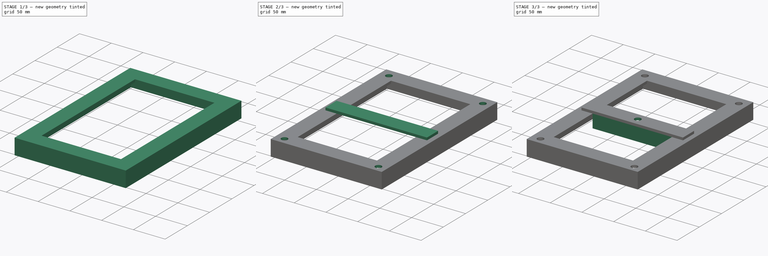
[diagram: build sequence overview — one tinted view per stage of 3, left to right]
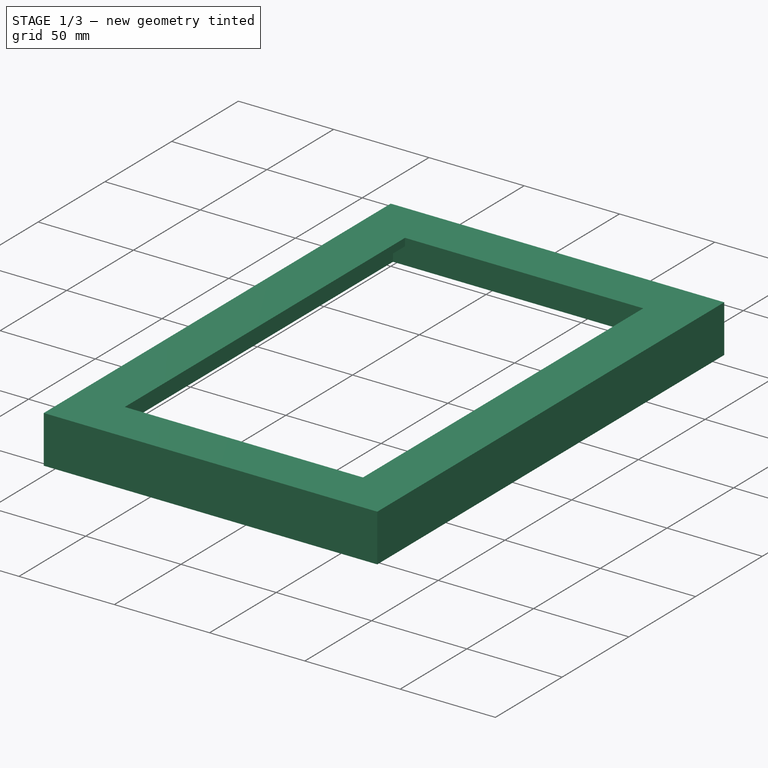
[diagram: stage 1 of 3 — iso view after this stage's code; geometry added in this stage tinted green]
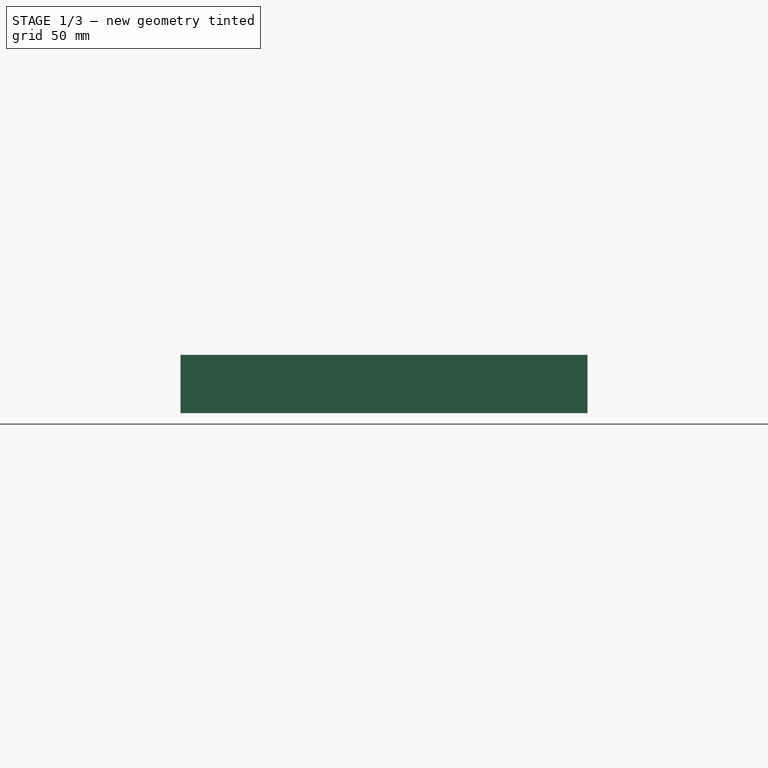
[diagram: stage 1 of 3 — front view after this stage's code; geometry added in this stage tinted green]
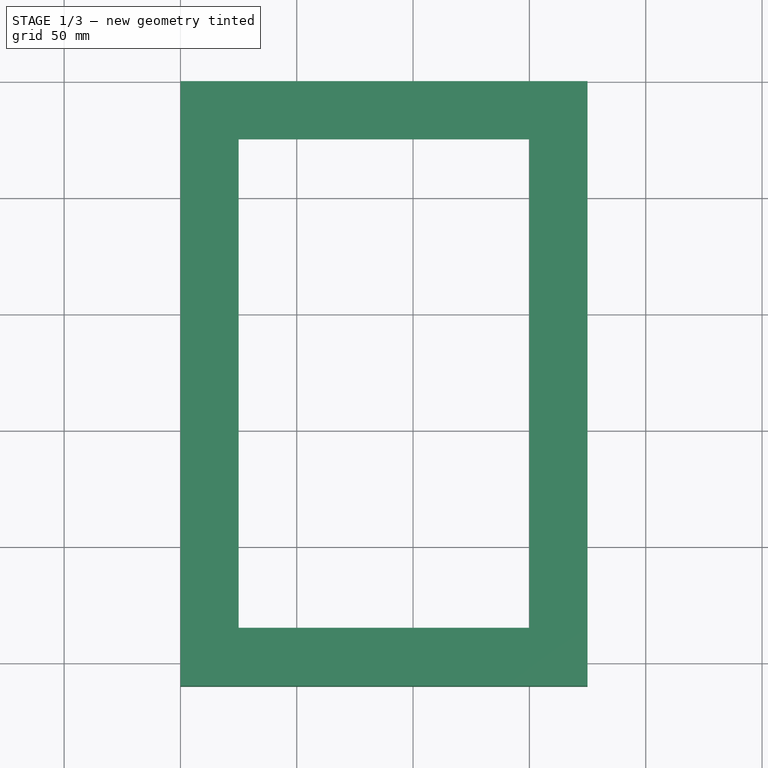
[diagram: stage 1 of 3 — top view after this stage's code; geometry added in this stage tinted green]
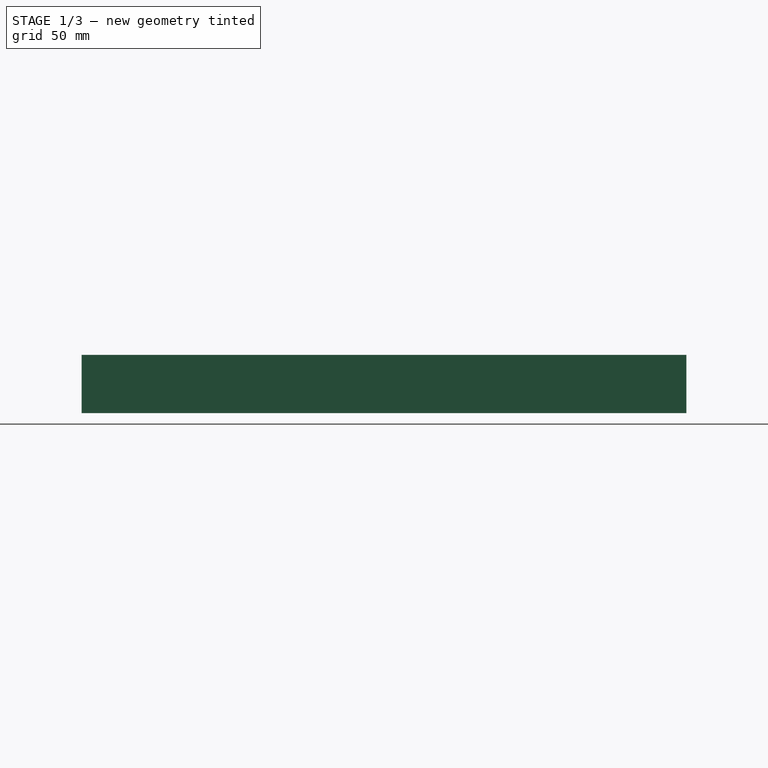
[diagram: stage 1 of 3 — right view after this stage's code; geometry added in this stage tinted green]
FCSTD DOCUMENT  (FreeCAD 0.14R3703 (Git))
Label: solar-panel-stand
License: CC-BY 3.0
LicenseURL: http://creativecommons.org/licenses/by/3.0/
objects: Sketcher::SketchObject×6, PartDesign::Pad×3, PartDesign::Pocket×3, Part::Feature×1
note: 19 computed .brp shape members not serialized (recipe doc carries the construction recipe); baked Part::Feature solids carry a one-line shape summary decoded from their .brp

FEATURE [Sketcher::SketchObject] Sketch002  label="Base Frame Sketch"
  sketch-geometry (12):
    g0: LineSegment StartX=0 StartY=0 StartZ=0 EndX=175 EndY=0 EndZ=0
    g1: LineSegment StartX=175 StartY=0 StartZ=0 EndX=175 EndY=-260 EndZ=0
    g2: LineSegment StartX=175 StartY=-260 StartZ=0 EndX=0 EndY=-260 EndZ=0
    g3: LineSegment StartX=0 StartY=-260 StartZ=0 EndX=0 EndY=0 EndZ=0
    g4: LineSegment StartX=25 StartY=-25 StartZ=0 EndX=150 EndY=-25 EndZ=0
    g5: LineSegment StartX=150 StartY=-25 StartZ=0 EndX=150 EndY=-235 EndZ=0
    g6: LineSegment StartX=150 StartY=-235 StartZ=0 EndX=25 EndY=-235 EndZ=0
    g7: LineSegment StartX=25 StartY=-235 StartZ=0 EndX=25 EndY=-25 EndZ=0
    g8: LineSegment [constr] StartX=175 StartY=0 StartZ=0 EndX=150 EndY=-25 EndZ=0
    g9: LineSegment [constr] StartX=0 StartY=0 StartZ=0 EndX=25 EndY=-25 EndZ=0
    g10: LineSegment [constr] StartX=0 StartY=-260 StartZ=0 EndX=25 EndY=-235 EndZ=0
    g11: LineSegment [constr] StartX=175 StartY=-260 StartZ=0 EndX=150 EndY=-235 EndZ=0
  constraints (32):
    c: Coincident(g0,g1)
    c: Coincident(g1,g2)
    c: Coincident(g2,g3)
    c: Coincident(g3,g0)
    c: Horizontal(g0)
    c: Horizontal(g2)
    c: Vertical(g1)
    c: Vertical(g3)
    c: Coincident(g0,g-1)
    c: Distance(g0) = 175
    c: Distance(g1) = 260
    c: Coincident(g4,g5)
    c: Coincident(g5,g6)
    c: Coincident(g6,g7)
    c: Coincident(g7,g4)
    c: Horizontal(g4)
    c: Horizontal(g6)
    c: Vertical(g5)
    c: Vertical(g7)
    c: Coincident(g8,g0)
    c: Coincident(g8,g4)
    c: Coincident(g9,g-1)
    c: Coincident(g9,g4)
    c: Coincident(g10,g2)
    c: Coincident(g10,g6)
    c: Coincident(g11,g1)
    c: Coincident(g11,g5)
    c: Equal(g9,g8)
    c: Equal(g8,g11)
    c: Equal(g11,g10)
    c: Distance(g4) = 125
    c: Distance(g5) = 210
FEATURE [PartDesign::Pad] Pad002  label="Base Frame"
  Length = 25
  Length2 = 100
  Sketch = -> Sketch002
  Type = 0
FEATURE [Sketcher::SketchObject] Sketch  label="L Shape Sketch"
  Placement = pos=(0,0,0) rot=(1,0,0;3.14159rad)
  Support = -> Pad002 [Face9]
  sketch-geometry (4):
    g0: LineSegment StartX=4 StartY=4 StartZ=0 EndX=171 EndY=4 EndZ=0
    g1: LineSegment StartX=171 StartY=4 StartZ=0 EndX=171 EndY=256 EndZ=0
    g2: LineSegment StartX=171 StartY=256 StartZ=0 EndX=4 EndY=256 EndZ=0
    g3: LineSegment StartX=4 StartY=256 StartZ=0 EndX=4 EndY=4 EndZ=0
  constraints (12):
    c: Coincident(g0,g1)
    c: Coincident(g1,g2)
    c: Coincident(g2,g3)
    c: Coincident(g3,g0)
    c: Horizontal(g0)
    c: Horizontal(g2)
    c: Vertical(g1)
    c: Vertical(g3)
    c: DistanceX(g0) = 4
    c: DistanceY(g0) = 4
    c: Distance(g0) = 167
    c: Distance(g1) = 252
FEATURE [PartDesign::Pocket] Pocket  label="L Shape Frame"
  Length = 21
  Sketch = -> Sketch
  Type = 0
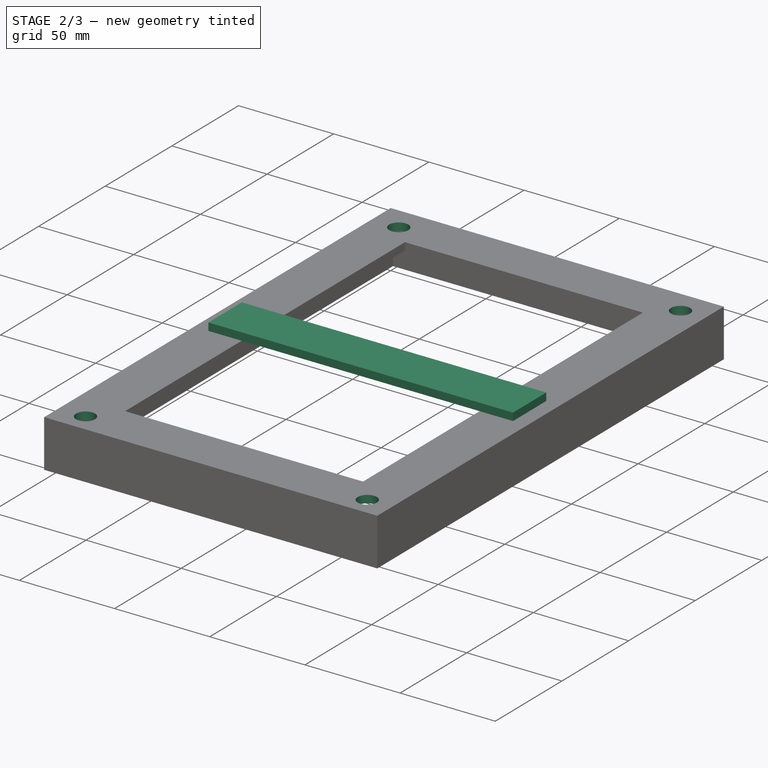
[diagram: stage 2 of 3 — iso view after this stage's code; geometry added in this stage tinted green]
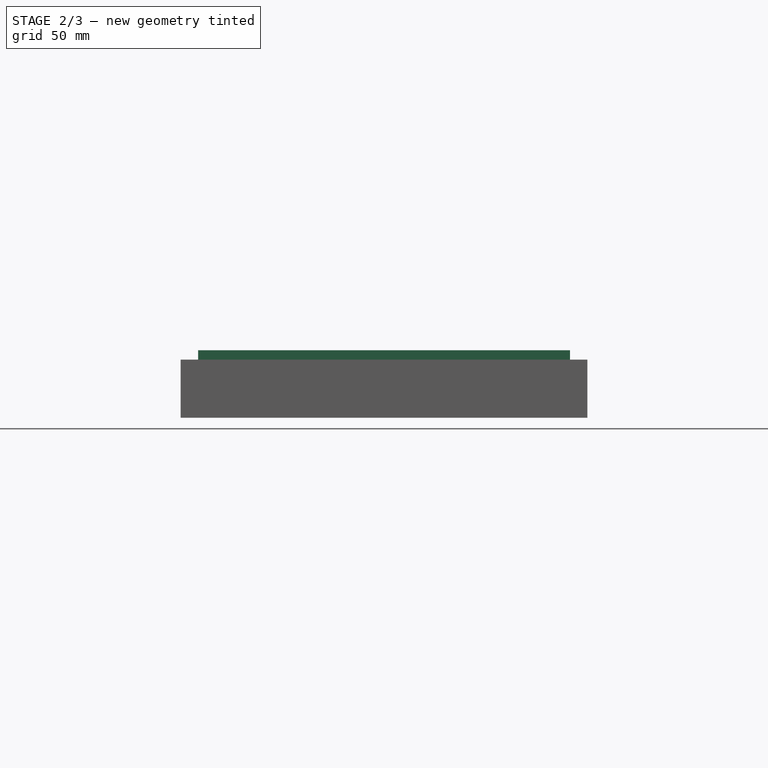
[diagram: stage 2 of 3 — front view after this stage's code; geometry added in this stage tinted green]
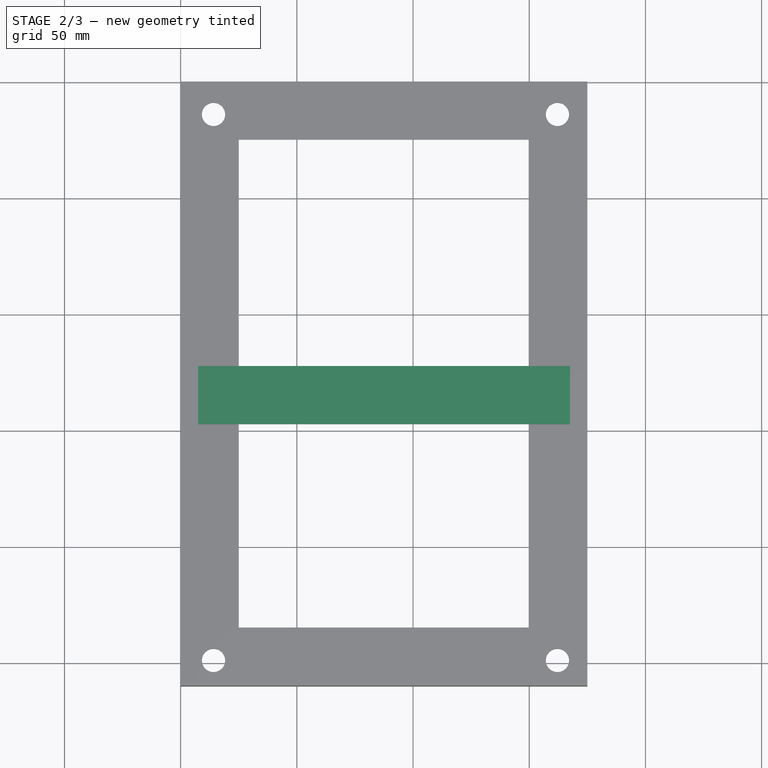
[diagram: stage 2 of 3 — top view after this stage's code; geometry added in this stage tinted green]
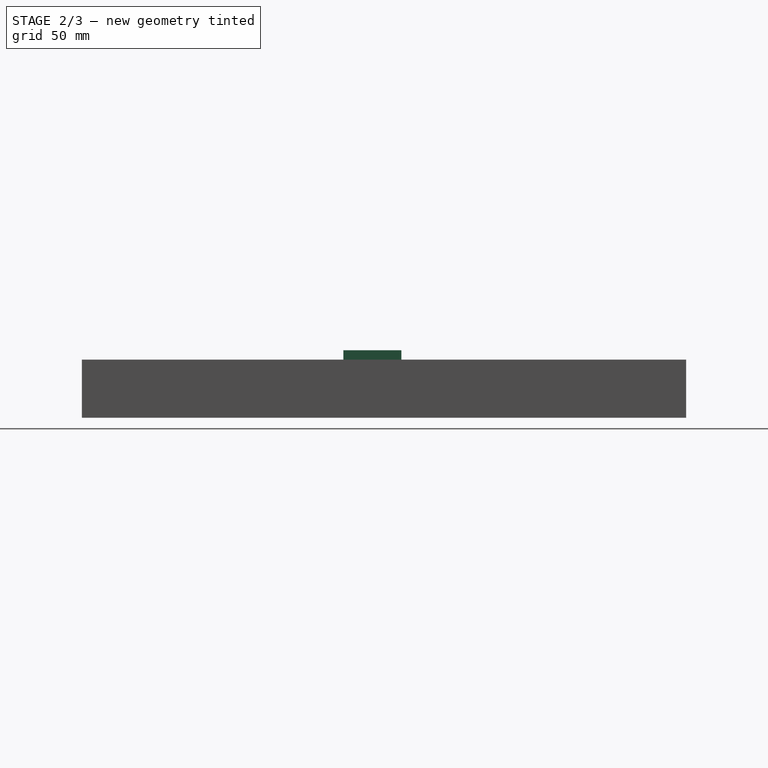
[diagram: stage 2 of 3 — right view after this stage's code; geometry added in this stage tinted green]
FEATURE [Sketcher::SketchObject] Sketch003  label="Holes Sketch"
  Placement = pos=(0,0,25) rot=(0,0,1;0rad)
  Support = -> Pocket [Face5]
  sketch-geometry (9):
    g0: Circle CenterX=14.1421 CenterY=-14.1421 CenterZ=0 NormalX=0 NormalY=0 NormalZ=1 Radius=5
    g1: Circle CenterX=162.142 CenterY=-14.1421 CenterZ=0 NormalX=0 NormalY=0 NormalZ=1 Radius=5
    g2: Circle CenterX=14.1421 CenterY=-249.142 CenterZ=0 NormalX=0 NormalY=0 NormalZ=1 Radius=5
    g3: Circle CenterX=162.142 CenterY=-249.142 CenterZ=0 NormalX=0 NormalY=0 NormalZ=1 Radius=5
    g4: LineSegment [constr] StartX=0 StartY=0 StartZ=0 EndX=14.1421 EndY=-14.1421 EndZ=0
    g5: LineSegment [constr] StartX=14.1421 StartY=-14.1421 StartZ=0 EndX=162.142 EndY=-14.1421 EndZ=0
    g6: LineSegment [constr] StartX=162.142 StartY=-14.1421 StartZ=0 EndX=162.142 EndY=-249.142 EndZ=0
    g7: LineSegment [constr] StartX=162.142 StartY=-249.142 StartZ=0 EndX=14.1421 EndY=-249.142 EndZ=0
    g8: LineSegment [constr] StartX=14.1421 StartY=-249.142 StartZ=0 EndX=14.1421 EndY=-14.1421 EndZ=0
  constraints (25):
    c: Equal(g0,g1)
    c: Equal(g1,g3)
    c: Equal(g3,g2)
    c: Radius(g0) = 5
    c: Coincident(g4,g-1)
    c: Coincident(g4,g0)
    c: Angle(g4,g-1) = 0.785398
    c: Distance(g4) = 20
    c: Coincident(g5,g6)
    c: Coincident(g6,g7)
    c: Coincident(g7,g8)
    c: Coincident(g8,g5)
    c: Horizontal(g5)
    c: Horizontal(g7)
    c: Vertical(g6)
    c: Vertical(g8)
    c: Coincident(g5,g0)
    c: DistanceX(g2,g7) = 0
    c: DistanceY(g2,g7) = 0
    c: DistanceX(g3,g6) = 0
    c: DistanceY(g3,g6) = 0
    c: DistanceX(g1,g5) = 0
    c: DistanceY(g1,g5) = 0
    c: Distance(g7) = 148
    c: Distance(g6) = 235
FEATURE [PartDesign::Pocket] Pocket001  label="Holes"
  Length = 4
  Sketch = -> Sketch003
  Type = 0
FEATURE [Sketcher::SketchObject] Sketch004  label="Rod Holder Sketch"
  ExternalGeometry = -> [Pocket001]
  Placement = pos=(0,0,25) rot=(0,0,1;0rad)
  Support = -> Pocket001 [Face5]
  sketch-geometry (4):
    g0: LineSegment StartX=7.515 StartY=-122.5 StartZ=0 EndX=167.515 EndY=-122.5 EndZ=0
    g1: LineSegment StartX=167.515 StartY=-122.5 StartZ=0 EndX=167.515 EndY=-147.5 EndZ=0
    g2: LineSegment StartX=167.515 StartY=-147.5 StartZ=0 EndX=7.515 EndY=-147.5 EndZ=0
    g3: LineSegment StartX=7.515 StartY=-147.5 StartZ=0 EndX=7.515 EndY=-122.5 EndZ=0
  constraints (12):
    c: Coincident(g0,g1)
    c: Coincident(g1,g2)
    c: Coincident(g2,g3)
    c: Coincident(g3,g0)
    c: Horizontal(g0)
    c: Horizontal(g2)
    c: Vertical(g1)
    c: Vertical(g3)
    c: Distance(g1) = 25
    c: Distance(g2) = 160
    c: DistanceY(g0,g-5) = 97.5
    c: DistanceX(g0,g-5) = -17.515
FEATURE [PartDesign::Pad] Pad  label="Rod Holder"
  Length = 4
  Length2 = 100
  Sketch = -> Sketch004
  Type = 0
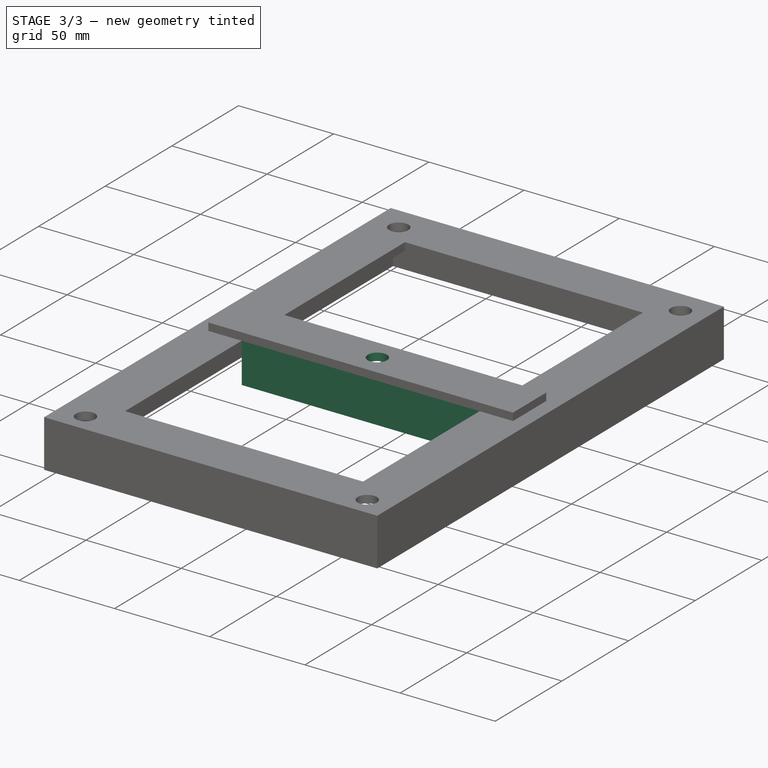
[diagram: stage 3 of 3 — iso view after this stage's code; geometry added in this stage tinted green]
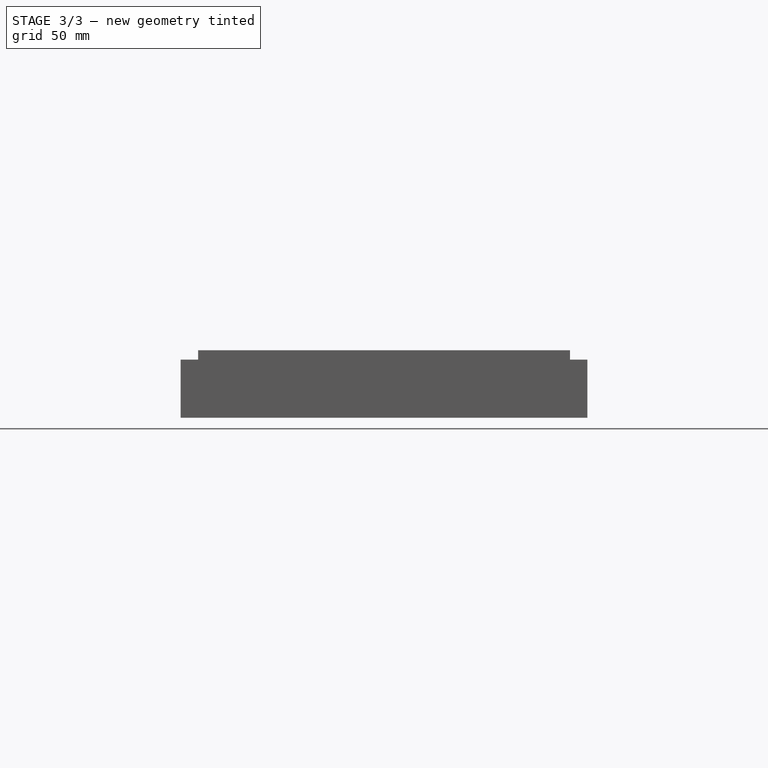
[diagram: stage 3 of 3 — front view after this stage's code; geometry added in this stage tinted green]
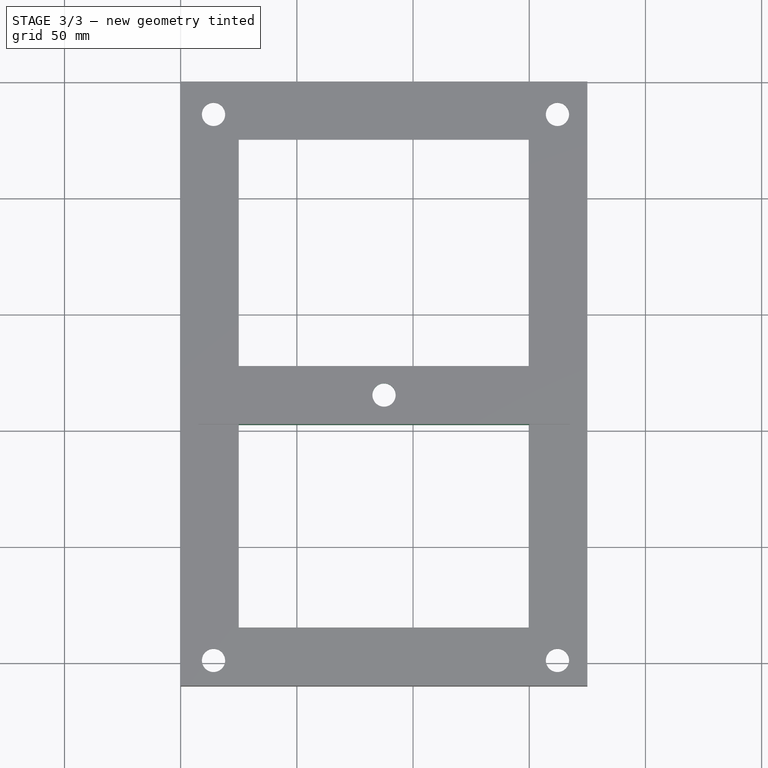
[diagram: stage 3 of 3 — top view after this stage's code; geometry added in this stage tinted green]
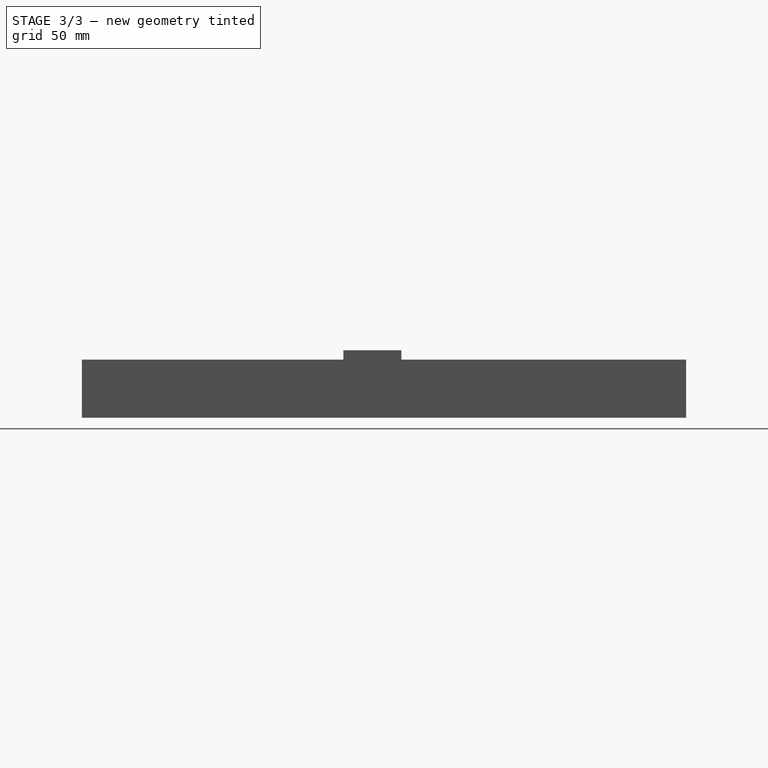
[diagram: stage 3 of 3 — right view after this stage's code; geometry added in this stage tinted green]
FEATURE [Sketcher::SketchObject] Sketch005  label="Rod Hole Sketch"
  ExternalGeometry = -> [Pad]
  Placement = pos=(0,0,29) rot=(0,0,1;0rad)
  Support = -> Pad [Face25]
  sketch-geometry (4):
    g0: Circle CenterX=87.515 CenterY=-135 CenterZ=0 NormalX=0 NormalY=0 NormalZ=1 Radius=5
    g1: LineSegment [constr] StartX=87.515 StartY=-135 StartZ=0 EndX=7.515 EndY=-147.5 EndZ=0
    g2: LineSegment [constr] StartX=167.515 StartY=-122.5 StartZ=0 EndX=87.515 EndY=-135 EndZ=0
    g3: LineSegment [constr] StartX=167.515 StartY=-147.5 StartZ=0 EndX=87.515 EndY=-135 EndZ=0
  constraints (9):
    c: Radius(g0) = 5
    c: Coincident(g1,g0)
    c: Coincident(g1,g-3)
    c: Coincident(g2,g-4)
    c: Coincident(g2,g0)
    c: Coincident(g3,g-4)
    c: Coincident(g3,g0)
    c: Equal(g3,g2)
    c: Equal(g2,g1)
FEATURE [PartDesign::Pocket] Pocket002  label="Rod Hole"
  Length = 4
  Sketch = -> Sketch005
  Type = 0
FEATURE [Sketcher::SketchObject] Sketch006  label="Rod Holder L Shape Sketch"
  ExternalGeometry = -> [Pocket002]
  Placement = pos=(0,0,25) rot=(1,0,0;3.14159rad)
  Support = -> Pocket002 [Face24]
  sketch-geometry (4):
    g0: LineSegment StartX=25 StartY=147.5 StartZ=0 EndX=150 EndY=147.5 EndZ=0
    g1: LineSegment StartX=150 StartY=147.5 StartZ=0 EndX=150 EndY=143.5 EndZ=0
    g2: LineSegment StartX=150 StartY=143.5 StartZ=0 EndX=25 EndY=143.5 EndZ=0
    g3: LineSegment StartX=25 StartY=143.5 StartZ=0 EndX=25 EndY=147.5 EndZ=0
  constraints (11):
    c: Coincident(g0,g1)
    c: Coincident(g1,g2)
    c: Coincident(g2,g3)
    c: Coincident(g3,g0)
    c: Horizontal(g0)
    c: Horizontal(g2)
    c: Vertical(g1)
    c: Vertical(g3)
    c: Coincident(g0,g-3)
    c: Distance(g1) = 4
    c: DistanceX(g-3,g0) = 0
FEATURE [PartDesign::Pad] Pad003  label="Rod Holder L Shape"
  Length = 21
  Length2 = 100
  Sketch = -> Sketch006
  Type = 0
FEATURE [Part::Feature] Pad003001  label="Solar Panel Stand"
  shape: bbox 175 x 260 x 29 mm, 33 faces (baked)
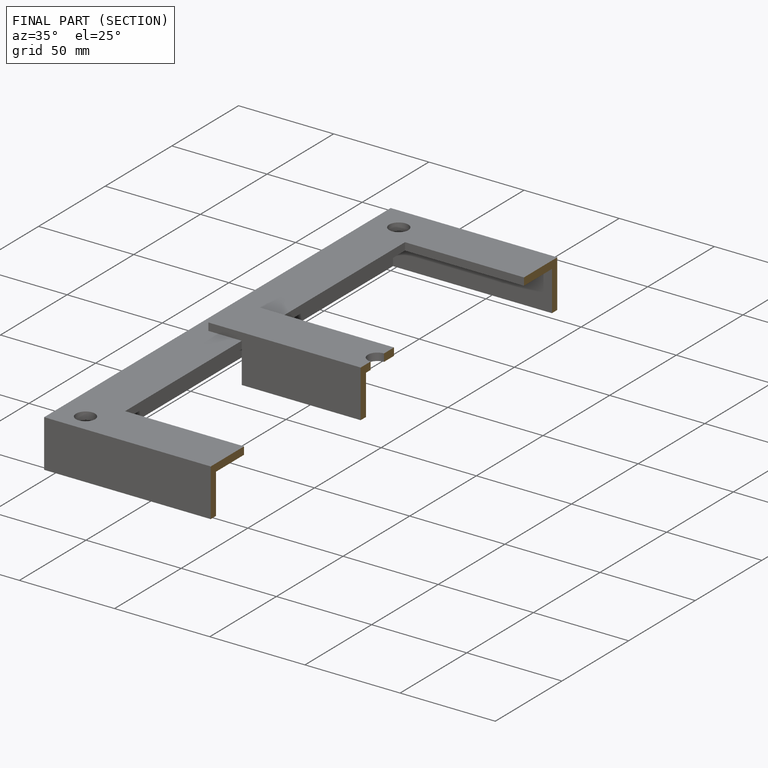
[diagram: finished part — half-section view (interior)]
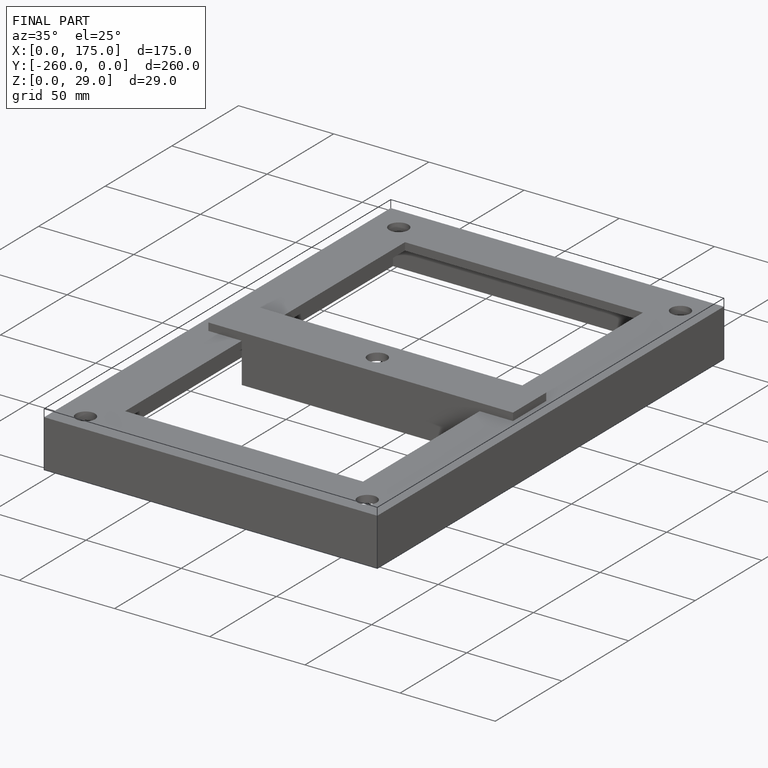
[diagram: finished part — iso view with bounding-box wireframe]
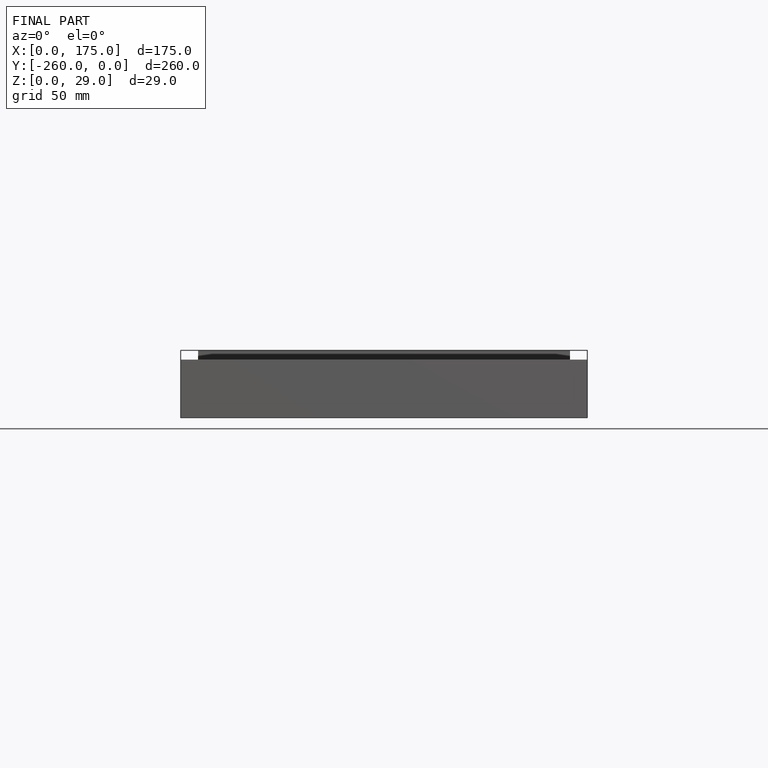
[diagram: finished part — front view with bounding-box wireframe]
